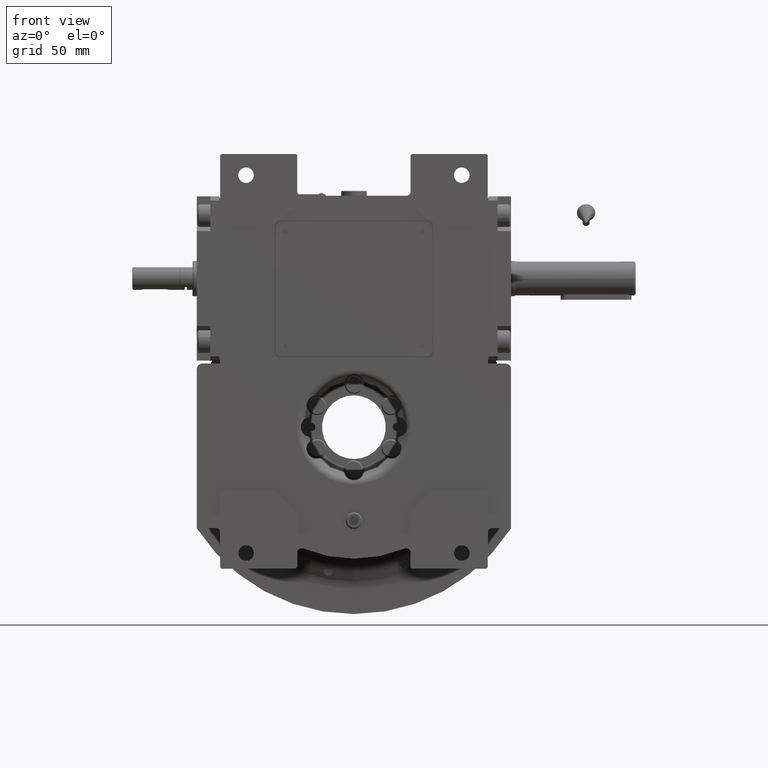
[diagram: clean part render]
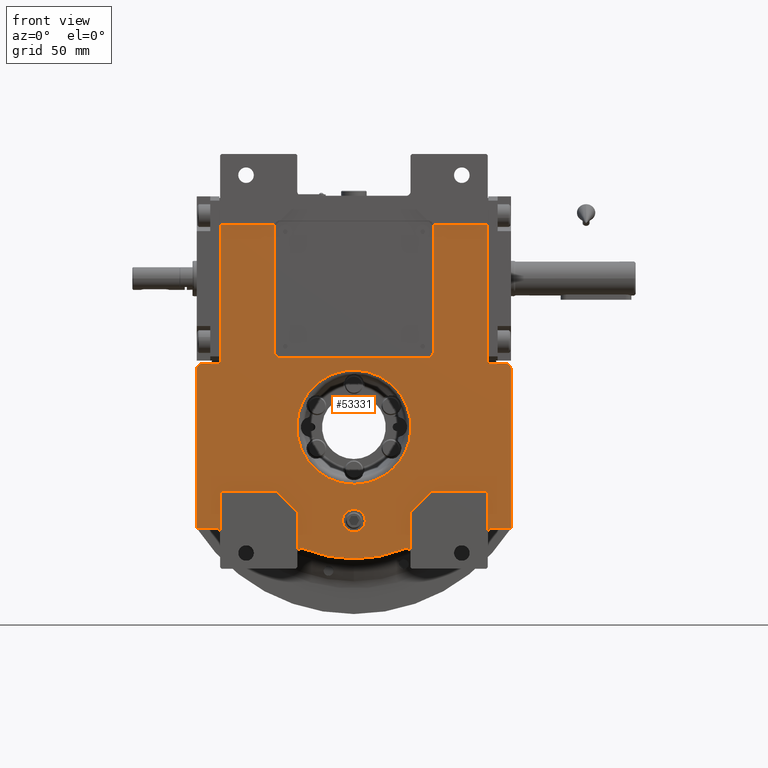
[diagram: same view with one face highlighted and labeled with its STEP entity id]
A machine part, front view. The second image highlights one B-rep face of the part: STEP entity #53331.
In plain terms, the highlighted planar face has unit normal (0, 1, 0).
Its self-contained STEP definition (entity closure, byte-faithful):
#179 = VECTOR ( 'NONE', #21048, 1000.000000000000000 ) ;
#185 = EDGE_CURVE ( 'NONE', #57902, #26797, #9565, .T. ) ;
#217 = DIRECTION ( 'NONE',  ( -1.000000000000000000, 0.000000000000000000, 0.000000000000000000 ) ) ;
#1498 = CARTESIAN_POINT ( 'NONE',  ( -51.99999999999900524, -53.50000000000000000, 142.0000000000000000 ) ) ;
#1607 = DIRECTION ( 'NONE',  ( 1.000000000000000000, 0.000000000000000000, 0.000000000000000000 ) ) ;
#1786 = LINE ( 'NONE', #18813, #11370 ) ;
#1802 = VERTEX_POINT ( 'NONE', #19235 ) ;
#1838 = DIRECTION ( 'NONE',  ( -0.9682458365518610277, 0.000000000000000000, 0.2499999999999737432 ) ) ;
#1867 = CARTESIAN_POINT ( 'NONE',  ( 55.87298334620739837, -53.50000000000000000, 143.0000000000000000 ) ) ;
#2284 = DIRECTION ( 'NONE',  ( -3.469446951953617344E-15, 0.000000000000000000, 1.000000000000000000 ) ) ;
#2333 = DIRECTION ( 'NONE',  ( -0.3854166666666672403, 0.000000000000000000, -0.9227426472508764022 ) ) ;
#2440 = CARTESIAN_POINT ( 'NONE',  ( 55.00000000000000000, -53.50000000000000000, -45.00000000000000000 ) ) ;
#2570 = CARTESIAN_POINT ( 'NONE',  ( -107.0000000000000000, -53.50000000000000000, 45.00000000000000000 ) ) ;
#2755 = CARTESIAN_POINT ( 'NONE',  ( 1.264666971694413862E-10, -53.50000000000000000, -40.30959420574829721 ) ) ;
#2824 = CARTESIAN_POINT ( 'NONE',  ( 40.00000000000000000, -53.50000000000000000, -60.00000000000000000 ) ) ;
#3784 = CARTESIAN_POINT ( 'NONE',  ( 97.50000000000000000, -53.50000000000000000, -71.43528539874399996 ) ) ;
#3820 = EDGE_CURVE ( 'NONE', #16667, #27194, #37629, .T. ) ;
#3899 = CARTESIAN_POINT ( 'NONE',  ( 0.000000000000000000, -53.50000000000000000, 0.000000000000000000 ) ) ;
#3945 = ORIENTED_EDGE ( 'NONE', *, *, #3820, .T. ) ;
#4626 = EDGE_CURVE ( 'NONE', #55127, #65668, #26026, .T. ) ;
#4640 = LINE ( 'NONE', #57358, #15081 ) ;
#4792 = DIRECTION ( 'NONE',  ( -1.000000000000000000, 0.000000000000000000, 4.625929269271481378E-15 ) ) ;
#4874 = CIRCLE ( 'NONE', #10441, 3.000000000000002665 ) ;
#5055 = EDGE_LOOP ( 'NONE', ( #62973, #53731 ) ) ;
#5072 = DIRECTION ( 'NONE',  ( 1.000000000000000000, 0.000000000000000000, 0.000000000000000000 ) ) ;
#5956 = EDGE_CURVE ( 'NONE', #55127, #42602, #19612, .T. ) ;
#6502 = VERTEX_POINT ( 'NONE', #21757 ) ;
#6538 = VERTEX_POINT ( 'NONE', #10238 ) ;
#6593 = DIRECTION ( 'NONE',  ( 0.000000000000000000, 0.000000000000000000, 1.000000000000000000 ) ) ;
#6730 = CARTESIAN_POINT ( 'NONE',  ( -55.00000000000000000, -53.50000000000000000, -45.00000000000000000 ) ) ;
#6828 = VERTEX_POINT ( 'NONE', #35995 ) ;
#7495 = EDGE_CURVE ( 'NONE', #8000, #43725, #58852, .T. ) ;
#7790 = CARTESIAN_POINT ( 'NONE',  ( 111.0000000000000000, -53.50000000000000000, 41.00000000000000000 ) ) ;
#8000 = VERTEX_POINT ( 'NONE', #1867 ) ;
#8304 = ORIENTED_EDGE ( 'NONE', *, *, #21728, .T. ) ;
#8385 = CARTESIAN_POINT ( 'NONE',  ( 111.0000000000000000, -53.50000000000000000, -71.43528539874399996 ) ) ;
#8390 = EDGE_CURVE ( 'NONE', #6502, #24526, #61072, .T. ) ;
#8412 = EDGE_CURVE ( 'NONE', #40487, #60715, #38381, .T. ) ;
#8525 = CARTESIAN_POINT ( 'NONE',  ( -52.00000000000000000, -53.50000000000000000, 49.00000000000000000 ) ) ;
#9131 = PLANE ( 'NONE',  #56819 ) ;
#9324 = LINE ( 'NONE', #30605, #49322 ) ;
#9565 = LINE ( 'NONE', #26274, #179 ) ;
#9635 = VECTOR ( 'NONE', #56140, 1000.000000000000114 ) ;
#9955 = ORIENTED_EDGE ( 'NONE', *, *, #40235, .F. ) ;
#10084 = ORIENTED_EDGE ( 'NONE', *, *, #7495, .F. ) ;
#10238 = CARTESIAN_POINT ( 'NONE',  ( 94.50000000000000000, -53.50000000000000000, 45.00000000000000000 ) ) ;
#10441 = AXIS2_PLACEMENT_3D ( 'NONE', #22296, #53696, #6593 ) ;
#10782 = EDGE_CURVE ( 'NONE', #36596, #40407, #20053, .T. ) ;
#10919 = CIRCLE ( 'NONE', #20794, 3.000000000000003997 ) ;
#10999 = CARTESIAN_POINT ( 'NONE',  ( -8.881784197001250351E-16, -53.50000000000000000, -66.00000000000000000 ) ) ;
#11343 = DIRECTION ( 'NONE',  ( 0.000000000000000000, -1.000000000000000000, 0.000000000000000000 ) ) ;
#11370 = VECTOR ( 'NONE', #29295, 1000.000000000000000 ) ;
#11458 = DIRECTION ( 'NONE',  ( 6.319570704518680589E-16, 0.000000000000000000, 1.000000000000000000 ) ) ;
#11782 = EDGE_CURVE ( 'NONE', #64027, #34669, #59310, .T. ) ;
#11961 = EDGE_CURVE ( 'NONE', #27194, #16571, #68050, .T. ) ;
#12426 = DIRECTION ( 'NONE',  ( 0.000000000000000000, -1.000000000000000000, 0.000000000000000000 ) ) ;
#12514 = CARTESIAN_POINT ( 'NONE',  ( -80.61913312099703433, -53.49999999999999289, -40.30952624498007708 ) ) ;
#12727 = CARTESIAN_POINT ( 'NONE',  ( 94.50000000000000000, -53.50000000000000000, -74.43528539874399996 ) ) ;
#12794 = CARTESIAN_POINT ( 'NONE',  ( 40.00000000000000000, -53.50000000000000000, -88.58329413608420566 ) ) ;
#12863 = VERTEX_POINT ( 'NONE', #16920 ) ;
#12959 = VERTEX_POINT ( 'NONE', #44478 ) ;
#13010 = CARTESIAN_POINT ( 'NONE',  ( -35.84375000000000000, -53.50000000000000000, -85.81506619433150718 ) ) ;
#13175 = CARTESIAN_POINT ( 'NONE',  ( -1.264761546777279996E-10, -53.50000000000000000, 40.30959420574835406 ) ) ;
#13269 = CARTESIAN_POINT ( 'NONE',  ( 94.50000000000000000, -53.50000000000000000, 143.0000000000000000 ) ) ;
#13490 = DIRECTION ( 'NONE',  ( 0.000000000000000000, -1.000000000000000000, 0.000000000000000000 ) ) ;
#13628 = DIRECTION ( 'NONE',  ( -0.000000000000000000, 1.000000000000000000, 0.000000000000000000 ) ) ;
#13750 = DIRECTION ( 'NONE',  ( -1.000000000000000000, 0.000000000000000000, 0.000000000000000000 ) ) ;
#13985 = EDGE_CURVE ( 'NONE', #18347, #20181, #1786, .T. ) ;
#14184 = ORIENTED_EDGE ( 'NONE', *, *, #64261, .F. ) ;
#14221 = DIRECTION ( 'NONE',  ( -1.000000000000000000, 0.000000000000000000, 1.734723475976808672E-15 ) ) ;
#14480 = VECTOR ( 'NONE', #1607, 1000.000000000000000 ) ;
#14888 = CIRCLE ( 'NONE', #53912, 3.000000000000002665 ) ;
#15030 = FACE_BOUND ( 'NONE', #53476, .T. ) ;
#15081 = VECTOR ( 'NONE', #47195, 1000.000000000000000 ) ;
#15148 = CARTESIAN_POINT ( 'NONE',  ( -55.00000000000000000, -53.50000000000000000, -45.00000000000000000 ) ) ;
#15834 = EDGE_CURVE ( 'NONE', #57902, #30304, #14888, .T. ) ;
#16210 = CARTESIAN_POINT ( 'NONE',  ( 1.264666971694413862E-10, -53.50000000000000000, -40.30959420574829721 ) ) ;
#16378 = CARTESIAN_POINT ( 'NONE',  ( 8.000000000000000000, -53.50000000000000000, -66.00000000000000000 ) ) ;
#16514 = ORIENTED_EDGE ( 'NONE', *, *, #15834, .T. ) ;
#16571 = VERTEX_POINT ( 'NONE', #60769 ) ;
#16667 = VERTEX_POINT ( 'NONE', #8385 ) ;
#16869 = ORIENTED_EDGE ( 'NONE', *, *, #51128, .F. ) ;
#16920 = CARTESIAN_POINT ( 'NONE',  ( -55.87298334620739837, -53.50000000000000000, 143.0000000000000000 ) ) ;
#17398 = CARTESIAN_POINT ( 'NONE',  ( -111.0000000000000000, -53.50000000000000000, -71.43528539874409944 ) ) ;
#17459 = VECTOR ( 'NONE', #13750, 1000.000000000000000 ) ;
#17770 = DIRECTION ( 'NONE',  ( 0.000000000000000000, 0.000000000000000000, 1.000000000000000000 ) ) ;
#17846 = CARTESIAN_POINT ( 'NONE',  ( -56.00000000000000000, -53.50000000000000000, 53.00000000000000000 ) ) ;
#18347 = VERTEX_POINT ( 'NONE', #2570 ) ;
#18438 = EDGE_CURVE ( 'NONE', #40748, #6828, #22284, .T. ) ;
#18813 = CARTESIAN_POINT ( 'NONE',  ( -107.0000000000000000, -53.50000000000000000, 45.00000000000000000 ) ) ;
#18888 = EDGE_CURVE ( 'NONE', #55366, #23399, #60778, .T. ) ;
#19224 = ORIENTED_EDGE ( 'NONE', *, *, #42801, .T. ) ;
#19235 = CARTESIAN_POINT ( 'NONE',  ( 55.00000000000000000, -53.50000000000000000, -45.00000000000000000 ) ) ;
#19587 = DIRECTION ( 'NONE',  ( 1.000000000000000000, 0.000000000000000000, 0.000000000000000000 ) ) ;
#19612 = CIRCLE ( 'NONE', #50792, 3.000000000000002665 ) ;
#20053 = LINE ( 'NONE', #15148, #35297 ) ;
#20181 = VERTEX_POINT ( 'NONE', #41006 ) ;
#20538 = ORIENTED_EDGE ( 'NONE', *, *, #185, .F. ) ;
#20704 = EDGE_CURVE ( 'NONE', #24526, #50369, #36978, .T. ) ;
#20794 = AXIS2_PLACEMENT_3D ( 'NONE', #58865, #27086, #48357 ) ;
#20861 = EDGE_CURVE ( 'NONE', #49009, #55366, #63783, .T. ) ;
#20921 = VECTOR ( 'NONE', #28950, 1000.000000000000000 ) ;
#21048 = DIRECTION ( 'NONE',  ( 0.000000000000000000, 0.000000000000000000, 1.000000000000000000 ) ) ;
#21134 = CARTESIAN_POINT ( 'NONE',  ( -1.264761546777279996E-10, -53.50000000000000000, 40.30959420574835406 ) ) ;
#21351 = CARTESIAN_POINT ( 'NONE',  ( -94.50000000000000000, -53.50000000000000000, -45.00000000000000000 ) ) ;
#21364 = EDGE_CURVE ( 'NONE', #26797, #36596, #61313, .T. ) ;
#21728 = EDGE_CURVE ( 'NONE', #18347, #6502, #32583, .T. ) ;
#21750 = CARTESIAN_POINT ( 'NONE',  ( 35.84375000000000000, -53.50000000000000000, -85.81506619433150718 ) ) ;
#21757 = CARTESIAN_POINT ( 'NONE',  ( -111.0000000000000000, -53.50000000000000000, 41.00000000000000000 ) ) ;
#21961 = DIRECTION ( 'NONE',  ( 0.000000000000000000, 0.000000000000000000, -1.000000000000000000 ) ) ;
#22284 = CIRCLE ( 'NONE', #62389, 8.000000000000000000 ) ;
#22296 = CARTESIAN_POINT ( 'NONE',  ( -97.50000000000000000, -53.50000000000000000, -74.43528539874409944 ) ) ;
#22297 = CARTESIAN_POINT ( 'NONE',  ( 40.00000000000000000, -53.50000000000000000, -60.00000000000000000 ) ) ;
#23048 = CARTESIAN_POINT ( 'NONE',  ( 56.00000000000000000, -53.50000000000000000, 53.00000000000000000 ) ) ;
#23399 = VERTEX_POINT ( 'NONE', #55240 ) ;
#23504 = EDGE_LOOP ( 'NONE', ( #68932, #56121, #46167, #41099, #16869, #14184, #49595, #8304, #65297, #50783, #36849, #30538, #69004, #35097, #20538, #16514, #19224, #65807, #56741, #34143, #33483, #60397, #47180, #51630, #3945, #53632, #65506, #35261, #10084, #9955, #52391, #27963 ) ) ;
#23713 = LINE ( 'NONE', #2440, #9635 ) ;
#23734 = CARTESIAN_POINT ( 'NONE',  ( -111.0000000000000000, -53.50000000000000000, 41.00000000000000000 ) ) ;
#23746 = CARTESIAN_POINT ( 'NONE',  ( 97.50000000000000000, -53.50000000000000000, -71.43528539874399996 ) ) ;
#23780 = VECTOR ( 'NONE', #27453, 1000.000000000000000 ) ;
#24042 = CARTESIAN_POINT ( 'NONE',  ( 94.50000000000000000, -53.50000000000000000, -45.00000000000000000 ) ) ;
#24258 = CARTESIAN_POINT ( 'NONE',  ( -40.00000000000000000, -53.50000000000000000, -60.00000000000000000 ) ) ;
#24526 = VERTEX_POINT ( 'NONE', #62649 ) ;
#25040 = CARTESIAN_POINT ( 'NONE',  ( 1.264666971694413862E-10, -53.50000000000000000, -40.30959420574829721 ) ) ;
#25453 = EDGE_CURVE ( 'NONE', #65668, #1802, #67196, .T. ) ;
#25669 = AXIS2_PLACEMENT_3D ( 'NONE', #49825, #13490, #40026 ) ;
#25723 = DIRECTION ( 'NONE',  ( 0.000000000000000000, 1.000000000000000000, 0.000000000000000000 ) ) ;
#26026 = LINE ( 'NONE', #46263, #65370 ) ;
#26274 = CARTESIAN_POINT ( 'NONE',  ( -40.00000000000000000, -53.50000000000000000, -88.58329413608420566 ) ) ;
#26797 = VERTEX_POINT ( 'NONE', #24258 ) ;
#27018 = AXIS2_PLACEMENT_3D ( 'NONE', #58904, #12426, #48044 ) ;
#27086 = DIRECTION ( 'NONE',  ( 0.000000000000000000, 1.000000000000000000, 0.000000000000000000 ) ) ;
#27194 = VERTEX_POINT ( 'NONE', #7790 ) ;
#27453 = DIRECTION ( 'NONE',  ( 0.000000000000000000, 0.000000000000000000, -1.000000000000000000 ) ) ;
#27629 = CARTESIAN_POINT ( 'NONE',  ( -52.00000000000000000, -53.50000000000000000, 49.00000000000000000 ) ) ;
#27758 = CARTESIAN_POINT ( 'NONE',  ( -107.0000000000000000, -53.50000000000000000, 41.00000000000000000 ) ) ;
#27963 = ORIENTED_EDGE ( 'NONE', *, *, #42644, .F. ) ;
#28050 = DIRECTION ( 'NONE',  ( 0.000000000000000000, -1.000000000000000000, 0.000000000000000000 ) ) ;
#28911 = DIRECTION ( 'NONE',  ( 1.000000000000000000, 0.000000000000000000, 0.000000000000000000 ) ) ;
#28950 = DIRECTION ( 'NONE',  ( 0.000000000000000000, 0.000000000000000000, -1.000000000000000000 ) ) ;
#29192 = VERTEX_POINT ( 'NONE', #67761 ) ;
#29295 = DIRECTION ( 'NONE',  ( 1.000000000000000000, 0.000000000000000000, 0.000000000000000000 ) ) ;
#29364 = FACE_BOUND ( 'NONE', #5055, .T. ) ;
#30302 = CIRCLE ( 'NONE', #59326, 4.000000000000572875 ) ;
#30304 = VERTEX_POINT ( 'NONE', #13010 ) ;
#30385 = EDGE_CURVE ( 'NONE', #29192, #49009, #4640, .T. ) ;
#30538 = ORIENTED_EDGE ( 'NONE', *, *, #37877, .F. ) ;
#30605 = CARTESIAN_POINT ( 'NONE',  ( 94.50000000000000000, -53.50000000000000000, 45.00000000000000000 ) ) ;
#30751 = VECTOR ( 'NONE', #11458, 1000.000000000000000 ) ;
#30880 = CARTESIAN_POINT ( 'NONE',  ( 94.50000000000000000, -53.50000000000000000, -45.00000000000000000 ) ) ;
#30984 = EDGE_CURVE ( 'NONE', #64407, #46578, #37641, .T. ) ;
#31145 = CARTESIAN_POINT ( 'NONE',  ( -97.50000000000000000, -53.50000000000000000, -71.43528539874409944 ) ) ;
#31155 = ORIENTED_EDGE ( 'NONE', *, *, #44342, .F. ) ;
#32583 = CIRCLE ( 'NONE', #45954, 3.999999999999996447 ) ;
#32667 = CARTESIAN_POINT ( 'NONE',  ( -40.00000000000000000, -53.50000000000000000, -88.58329413608420566 ) ) ;
#32753 = CARTESIAN_POINT ( 'NONE',  ( 111.0000000000000000, -53.50000000000000000, -71.43528539874399996 ) ) ;
#32944 = EDGE_CURVE ( 'NONE', #46578, #64407, #47028, .T. ) ;
#32971 = LINE ( 'NONE', #53547, #57900 ) ;
#33280 = CARTESIAN_POINT ( 'NONE',  ( 8.881784197001250351E-16, -53.50000000000000000, -66.00000000000000000 ) ) ;
#33439 = VERTEX_POINT ( 'NONE', #21750 ) ;
#33483 = ORIENTED_EDGE ( 'NONE', *, *, #25453, .F. ) ;
#33683 = AXIS2_PLACEMENT_3D ( 'NONE', #50542, #66277, #14221 ) ;
#33746 = AXIS2_PLACEMENT_3D ( 'NONE', #49764, #50108, #2333 ) ;
#33900 = AXIS2_PLACEMENT_3D ( 'NONE', #10999, #11343, #38530 ) ;
#34143 = ORIENTED_EDGE ( 'NONE', *, *, #48292, .F. ) ;
#34669 = VERTEX_POINT ( 'NONE', #12794 ) ;
#35097 = ORIENTED_EDGE ( 'NONE', *, *, #21364, .F. ) ;
#35261 = ORIENTED_EDGE ( 'NONE', *, *, #59070, .F. ) ;
#35297 = VECTOR ( 'NONE', #47923, 1000.000000000000000 ) ;
#35995 = CARTESIAN_POINT ( 'NONE',  ( -8.000000000000000000, -53.50000000000000000, -66.00000000000000000 ) ) ;
#36091 = EDGE_CURVE ( 'NONE', #6538, #16571, #9324, .T. ) ;
#36596 = VERTEX_POINT ( 'NONE', #6730 ) ;
#36849 = ORIENTED_EDGE ( 'NONE', *, *, #57324, .T. ) ;
#36957 = CARTESIAN_POINT ( 'NONE',  ( -94.50000000000000000, -53.50000000000000000, 45.00000000000000000 ) ) ;
#36978 = LINE ( 'NONE', #17398, #63738 ) ;
#37052 = CIRCLE ( 'NONE', #33746, 92.99999999999995737 ) ;
#37166 = VECTOR ( 'NONE', #58283, 1000.000000000000000 ) ;
#37629 = LINE ( 'NONE', #32753, #30751 ) ;
#37641 =( BOUNDED_CURVE ( )  B_SPLINE_CURVE ( 3, ( #2755, #12514, #65921, #13175 ),
 .UNSPECIFIED., .F., .F. ) 
 B_SPLINE_CURVE_WITH_KNOTS ( ( 4, 4 ),
 ( 1.432582689913126872, 4.574174019572492256 ),
 .UNSPECIFIED. ) 
 CURVE ( )  GEOMETRIC_REPRESENTATION_ITEM ( )  RATIONAL_B_SPLINE_CURVE ( ( 1.000000000000000000, 0.3333337746434759108, 0.3333337746434759108, 1.000000000000000000 ) ) 
 REPRESENTATION_ITEM ( '' )  );
#37877 = EDGE_CURVE ( 'NONE', #40407, #49076, #42949, .T. ) ;
#38381 = LINE ( 'NONE', #23048, #68858 ) ;
#38530 = DIRECTION ( 'NONE',  ( -1.000000000000000000, 0.000000000000000000, 0.000000000000000000 ) ) ;
#38772 = DIRECTION ( 'NONE',  ( 0.000000000000000000, -1.000000000000000000, 0.000000000000000000 ) ) ;
#39488 = CARTESIAN_POINT ( 'NONE',  ( -94.50000000000000000, -53.50000000000000000, -74.43528539874409944 ) ) ;
#40026 = DIRECTION ( 'NONE',  ( 1.000000000000000000, 0.000000000000000000, 5.204170427930416550E-15 ) ) ;
#40235 = EDGE_CURVE ( 'NONE', #60715, #8000, #30302, .T. ) ;
#40371 = VECTOR ( 'NONE', #50491, 1000.000000000000114 ) ;
#40407 = VERTEX_POINT ( 'NONE', #43657 ) ;
#40481 = CARTESIAN_POINT ( 'NONE',  ( 56.00000000000000000, -53.50000000000000000, 53.00000000000000000 ) ) ;
#40487 = VERTEX_POINT ( 'NONE', #40481 ) ;
#40748 = VERTEX_POINT ( 'NONE', #16378 ) ;
#41006 = CARTESIAN_POINT ( 'NONE',  ( -94.50000000000000000, -53.50000000000000000, 45.00000000000000000 ) ) ;
#41099 = ORIENTED_EDGE ( 'NONE', *, *, #43791, .F. ) ;
#41613 = DIRECTION ( 'NONE',  ( 0.000000000000000000, -1.000000000000000000, 0.000000000000000000 ) ) ;
#42270 = DIRECTION ( 'NONE',  ( 1.000000000000000000, 0.000000000000000000, 1.387778780781246883E-14 ) ) ;
#42602 = VERTEX_POINT ( 'NONE', #3784 ) ;
#42644 = EDGE_CURVE ( 'NONE', #23399, #40487, #57124, .T. ) ;
#42801 = EDGE_CURVE ( 'NONE', #30304, #33439, #37052, .T. ) ;
#42949 = LINE ( 'NONE', #21351, #61294 ) ;
#43383 = ORIENTED_EDGE ( 'NONE', *, *, #18438, .F. ) ;
#43587 = VECTOR ( 'NONE', #21961, 1000.000000000000000 ) ;
#43657 = CARTESIAN_POINT ( 'NONE',  ( -94.50000000000000000, -53.50000000000000000, -45.00000000000000000 ) ) ;
#43725 = VERTEX_POINT ( 'NONE', #13269 ) ;
#43791 = EDGE_CURVE ( 'NONE', #12863, #29192, #56139, .T. ) ;
#44342 = EDGE_CURVE ( 'NONE', #6828, #40748, #58471, .T. ) ;
#44478 = CARTESIAN_POINT ( 'NONE',  ( -94.50000000000000000, -53.50000000000000000, 143.0000000000000000 ) ) ;
#45954 = AXIS2_PLACEMENT_3D ( 'NONE', #27758, #50059, #2284 ) ;
#46035 = DIRECTION ( 'NONE',  ( 1.000000000000000000, 0.000000000000000000, 0.000000000000000000 ) ) ;
#46167 = ORIENTED_EDGE ( 'NONE', *, *, #30385, .F. ) ;
#46263 = CARTESIAN_POINT ( 'NONE',  ( 94.50000000000000000, -53.50000000000000000, -74.43528539874399996 ) ) ;
#46578 = VERTEX_POINT ( 'NONE', #59264 ) ;
#47028 =( BOUNDED_CURVE ( )  B_SPLINE_CURVE ( 3, ( #21134, #64404, #48330, #16210 ),
 .UNSPECIFIED., .F., .F. ) 
 B_SPLINE_CURVE_WITH_KNOTS ( ( 4, 4 ),
 ( 4.574175343352308687, 7.715766673011676957 ),
 .UNSPECIFIED. ) 
 CURVE ( )  GEOMETRIC_REPRESENTATION_ITEM ( )  RATIONAL_B_SPLINE_CURVE ( ( 1.000000000000000000, 0.3333337746434750226, 0.3333337746434750226, 1.000000000000000000 ) ) 
 REPRESENTATION_ITEM ( '' )  );
#47180 = ORIENTED_EDGE ( 'NONE', *, *, #5956, .T. ) ;
#47195 = DIRECTION ( 'NONE',  ( 0.000000000000000000, 0.000000000000000000, -1.000000000000000000 ) ) ;
#47298 = DIRECTION ( 'NONE',  ( 0.000000000000000000, 0.000000000000000000, 1.000000000000000000 ) ) ;
#47633 = DIRECTION ( 'NONE',  ( 0.000000000000000000, 1.000000000000000000, 0.000000000000000000 ) ) ;
#47923 = DIRECTION ( 'NONE',  ( -1.000000000000000000, 0.000000000000000000, 0.000000000000000000 ) ) ;
#48044 = DIRECTION ( 'NONE',  ( 0.000000000000000000, 0.000000000000000000, -1.000000000000000000 ) ) ;
#48191 = DIRECTION ( 'NONE',  ( 0.000000000000000000, 0.000000000000000000, -1.000000000000000000 ) ) ;
#48292 = EDGE_CURVE ( 'NONE', #1802, #64027, #23713, .T. ) ;
#48330 = CARTESIAN_POINT ( 'NONE',  ( 80.61913312125007280, -53.49999999999999289, -40.30955543265933727 ) ) ;
#48357 = DIRECTION ( 'NONE',  ( -0.3854166666666676289, 0.000000000000000000, 0.9227426472508761801 ) ) ;
#48374 = CARTESIAN_POINT ( 'NONE',  ( 94.50000000000000000, -53.50000000000000000, 143.0000000000000000 ) ) ;
#49009 = VERTEX_POINT ( 'NONE', #17846 ) ;
#49010 = CARTESIAN_POINT ( 'NONE',  ( 97.50000000000000000, -53.50000000000000000, -74.43528539874399996 ) ) ;
#49076 = VERTEX_POINT ( 'NONE', #39488 ) ;
#49322 = VECTOR ( 'NONE', #63740, 1000.000000000000000 ) ;
#49464 = AXIS2_PLACEMENT_3D ( 'NONE', #1498, #38772, #1838 ) ;
#49595 = ORIENTED_EDGE ( 'NONE', *, *, #13985, .F. ) ;
#49764 = CARTESIAN_POINT ( 'NONE',  ( 1.421085471520200056E-14, -53.50000000000000000, -4.263256414560599853E-14 ) ) ;
#49825 = CARTESIAN_POINT ( 'NONE',  ( 107.0000000000000000, -53.50000000000000000, 41.00000000000000000 ) ) ;
#50059 = DIRECTION ( 'NONE',  ( 0.000000000000000000, -1.000000000000000000, 0.000000000000000000 ) ) ;
#50108 = DIRECTION ( 'NONE',  ( 0.000000000000000000, -1.000000000000000000, 0.000000000000000000 ) ) ;
#50369 = VERTEX_POINT ( 'NONE', #31145 ) ;
#50491 = DIRECTION ( 'NONE',  ( -0.7071067811865474617, 0.000000000000000000, 0.7071067811865474617 ) ) ;
#50542 = CARTESIAN_POINT ( 'NONE',  ( -52.00000000000000000, -53.50000000000000000, 53.00000000000000000 ) ) ;
#50783 = ORIENTED_EDGE ( 'NONE', *, *, #20704, .T. ) ;
#50792 = AXIS2_PLACEMENT_3D ( 'NONE', #49010, #47633, #217 ) ;
#51128 = EDGE_CURVE ( 'NONE', #12959, #12863, #32971, .T. ) ;
#51281 = LINE ( 'NONE', #23746, #66525 ) ;
#51341 = FACE_OUTER_BOUND ( 'NONE', #23504, .T. ) ;
#51630 = ORIENTED_EDGE ( 'NONE', *, *, #62971, .T. ) ;
#52391 = ORIENTED_EDGE ( 'NONE', *, *, #8412, .F. ) ;
#53118 = CARTESIAN_POINT ( 'NONE',  ( 51.99999999999940314, -53.50000000000000000, 142.0000000000000000 ) ) ;
#53331 = ADVANCED_FACE ( 'NONE', ( #29364, #15030, #51341 ), #9131, .F. ) ;
#53476 = EDGE_LOOP ( 'NONE', ( #43383, #31155 ) ) ;
#53547 = CARTESIAN_POINT ( 'NONE',  ( -94.50000000000000000, -53.50000000000000000, 143.0000000000000000 ) ) ;
#53632 = ORIENTED_EDGE ( 'NONE', *, *, #11961, .T. ) ;
#53696 = DIRECTION ( 'NONE',  ( 0.000000000000000000, 1.000000000000000000, 0.000000000000000000 ) ) ;
#53731 = ORIENTED_EDGE ( 'NONE', *, *, #32944, .T. ) ;
#53912 = AXIS2_PLACEMENT_3D ( 'NONE', #58192, #25723, #4792 ) ;
#54133 = DIRECTION ( 'NONE',  ( 1.000000000000000000, 0.000000000000000000, 0.000000000000000000 ) ) ;
#55127 = VERTEX_POINT ( 'NONE', #12727 ) ;
#55240 = CARTESIAN_POINT ( 'NONE',  ( 52.00000000000000000, -53.50000000000000000, 49.00000000000000000 ) ) ;
#55366 = VERTEX_POINT ( 'NONE', #8525 ) ;
#56121 = ORIENTED_EDGE ( 'NONE', *, *, #20861, .F. ) ;
#56139 = CIRCLE ( 'NONE', #49464, 4.000000000000978773 ) ;
#56140 = DIRECTION ( 'NONE',  ( -0.7071067811865474617, 0.000000000000000000, -0.7071067811865474617 ) ) ;
#56741 = ORIENTED_EDGE ( 'NONE', *, *, #11782, .F. ) ;
#56819 = AXIS2_PLACEMENT_3D ( 'NONE', #3899, #13628, #19587 ) ;
#57124 = CIRCLE ( 'NONE', #27018, 3.999999999999996447 ) ;
#57324 = EDGE_CURVE ( 'NONE', #50369, #49076, #4874, .T. ) ;
#57358 = CARTESIAN_POINT ( 'NONE',  ( -56.00000000000000000, -53.50000000000000000, 142.0000000000000000 ) ) ;
#57900 = VECTOR ( 'NONE', #5072, 1000.000000000000000 ) ;
#57902 = VERTEX_POINT ( 'NONE', #32667 ) ;
#58192 = CARTESIAN_POINT ( 'NONE',  ( -37.00000000000000000, -53.50000000000000000, -88.58329413608420566 ) ) ;
#58283 = DIRECTION ( 'NONE',  ( 0.000000000000000000, 0.000000000000000000, 1.000000000000000000 ) ) ;
#58471 = CIRCLE ( 'NONE', #33900, 8.000000000000000000 ) ;
#58852 = LINE ( 'NONE', #59884, #14480 ) ;
#58865 = CARTESIAN_POINT ( 'NONE',  ( 37.00000000000000000, -53.50000000000000000, -88.58329413608420566 ) ) ;
#58904 = CARTESIAN_POINT ( 'NONE',  ( 52.00000000000000000, -53.50000000000000000, 53.00000000000000000 ) ) ;
#58970 = LINE ( 'NONE', #36957, #37166 ) ;
#59070 = EDGE_CURVE ( 'NONE', #43725, #6538, #65813, .T. ) ;
#59264 = CARTESIAN_POINT ( 'NONE',  ( -1.264761546777279996E-10, -53.50000000000000000, 40.30959420574835406 ) ) ;
#59310 = LINE ( 'NONE', #22297, #43587 ) ;
#59326 = AXIS2_PLACEMENT_3D ( 'NONE', #53118, #41613, #42270 ) ;
#59884 = CARTESIAN_POINT ( 'NONE',  ( 55.87298334620739837, -53.50000000000000000, 143.0000000000000000 ) ) ;
#59974 = CARTESIAN_POINT ( 'NONE',  ( -40.00000000000000000, -53.50000000000000000, -60.00000000000000000 ) ) ;
#60397 = ORIENTED_EDGE ( 'NONE', *, *, #4626, .F. ) ;
#60715 = VERTEX_POINT ( 'NONE', #68599 ) ;
#60769 = CARTESIAN_POINT ( 'NONE',  ( 107.0000000000000000, -53.50000000000000000, 45.00000000000000000 ) ) ;
#60778 = LINE ( 'NONE', #27629, #63531 ) ;
#61072 = LINE ( 'NONE', #23734, #20921 ) ;
#61294 = VECTOR ( 'NONE', #48191, 1000.000000000000000 ) ;
#61313 = LINE ( 'NONE', #59974, #40371 ) ;
#62389 = AXIS2_PLACEMENT_3D ( 'NONE', #33280, #28050, #65390 ) ;
#62649 = CARTESIAN_POINT ( 'NONE',  ( -111.0000000000000000, -53.50000000000000000, -71.43528539874409944 ) ) ;
#62971 = EDGE_CURVE ( 'NONE', #42602, #16667, #51281, .T. ) ;
#62973 = ORIENTED_EDGE ( 'NONE', *, *, #30984, .T. ) ;
#63531 = VECTOR ( 'NONE', #54133, 1000.000000000000000 ) ;
#63738 = VECTOR ( 'NONE', #28911, 1000.000000000000000 ) ;
#63740 = DIRECTION ( 'NONE',  ( 1.000000000000000000, 0.000000000000000000, 0.000000000000000000 ) ) ;
#63783 = CIRCLE ( 'NONE', #33683, 3.999999999999996447 ) ;
#64027 = VERTEX_POINT ( 'NONE', #2824 ) ;
#64261 = EDGE_CURVE ( 'NONE', #20181, #12959, #58970, .T. ) ;
#64404 = CARTESIAN_POINT ( 'NONE',  ( 80.61913312099713380, -53.49999999999999289, 40.30952624498025472 ) ) ;
#64407 = VERTEX_POINT ( 'NONE', #25040 ) ;
#65297 = ORIENTED_EDGE ( 'NONE', *, *, #8390, .T. ) ;
#65370 = VECTOR ( 'NONE', #47298, 1000.000000000000000 ) ;
#65390 = DIRECTION ( 'NONE',  ( 1.000000000000000000, 0.000000000000000000, 0.000000000000000000 ) ) ;
#65506 = ORIENTED_EDGE ( 'NONE', *, *, #36091, .F. ) ;
#65668 = VERTEX_POINT ( 'NONE', #24042 ) ;
#65807 = ORIENTED_EDGE ( 'NONE', *, *, #68800, .T. ) ;
#65813 = LINE ( 'NONE', #48374, #23780 ) ;
#65921 = CARTESIAN_POINT ( 'NONE',  ( -80.61913312124997333, -53.49999999999999289, 40.30955543265923069 ) ) ;
#66277 = DIRECTION ( 'NONE',  ( 0.000000000000000000, -1.000000000000000000, 0.000000000000000000 ) ) ;
#66525 = VECTOR ( 'NONE', #46035, 1000.000000000000000 ) ;
#67196 = LINE ( 'NONE', #30880, #17459 ) ;
#67761 = CARTESIAN_POINT ( 'NONE',  ( -56.00000000000000000, -53.50000000000000000, 142.0000000000000000 ) ) ;
#68050 = CIRCLE ( 'NONE', #25669, 4.000000000000003553 ) ;
#68599 = CARTESIAN_POINT ( 'NONE',  ( 56.00000000000000000, -53.50000000000000000, 142.0000000000000000 ) ) ;
#68800 = EDGE_CURVE ( 'NONE', #33439, #34669, #10919, .T. ) ;
#68858 = VECTOR ( 'NONE', #17770, 1000.000000000000000 ) ;
#68932 = ORIENTED_EDGE ( 'NONE', *, *, #18888, .F. ) ;
#69004 = ORIENTED_EDGE ( 'NONE', *, *, #10782, .F. ) ;